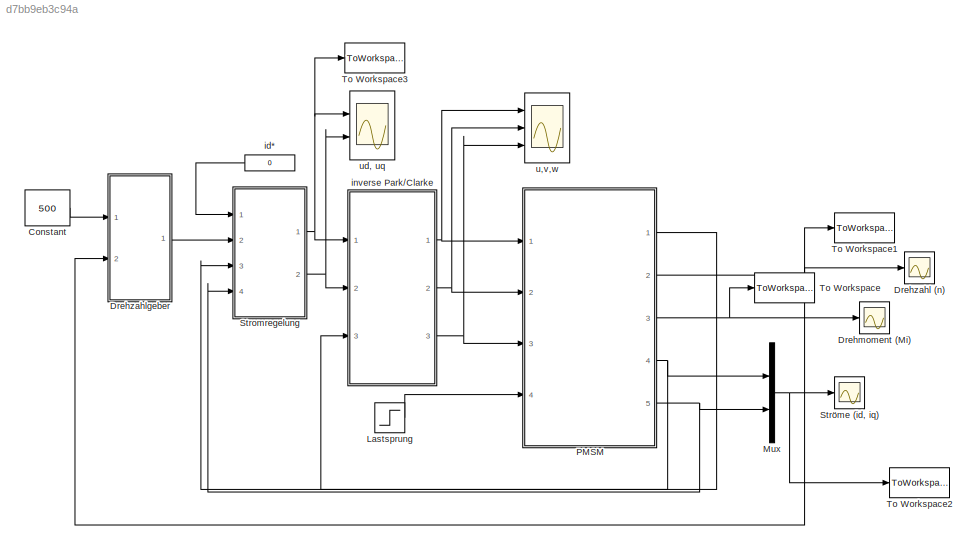
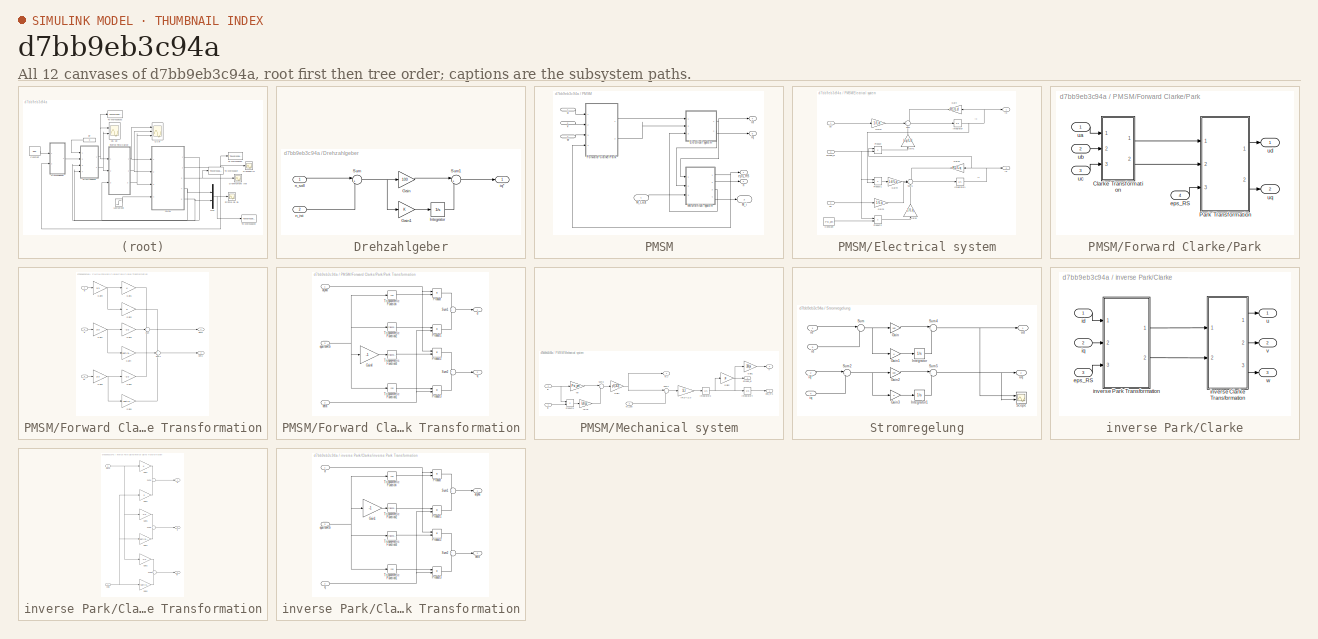
[diagram: thumbnail index - all 12 canvases of the model, root first then tree order]
MODEL slx_d7bb9eb3c94a
KIND model
BLOCK [Constant] Constant
  Value = 500
BLOCK [Scope] Drehmoment (Mi)
  Floating = off
  LimitDataPoints = off
  NumInputPorts = 1
  Ports = [1]
  SaveName = ScopeData2
  ShowLegends = off
  ZoomMode = yonly
BLOCK [Scope] Drehzahl (n)
  Floating = off
  LimitDataPoints = off
  NumInputPorts = 1
  Ports = [1]
  SaveName = ScopeData3
  ShowLegends = off
  TimeRange = 5
  YMax = 600
  YMin = 0
  ZoomMode = xonly
BLOCK [SubSystem] Drehzahlgeber
  Ports = [2, 1]
  RequestExecContextInheritance = off
BLOCK [Gain] Drehzahlgeber/Gain
  Gain = 100
  OutDataTypeStr = Inherit: Inherit via internal rule
  ParamDataTypeStr = Inherit: Inherit via internal rule
  SaturateOnIntegerOverflow = off
BLOCK [Gain] Drehzahlgeber/Gain1
  OutDataTypeStr = Inherit: Inherit via internal rule
  ParamDataTypeStr = Inherit: Inherit via internal rule
  SaturateOnIntegerOverflow = off
BLOCK [Integrator] Drehzahlgeber/Integrator
  Ports = [1, 1]
BLOCK [Sum] Drehzahlgeber/Sum
  IconShape = round
  InputSameDT = off
  Inputs = |+-
  OutDataTypeStr = Inherit: Inherit via internal rule
  Ports = [2, 1]
  SaturateOnIntegerOverflow = off
BLOCK [Sum] Drehzahlgeber/Sum1
  IconShape = round
  InputSameDT = off
  Inputs = |++
  OutDataTypeStr = Inherit: Inherit via internal rule
  Ports = [2, 1]
  SaturateOnIntegerOverflow = off
BLOCK [Outport] Drehzahlgeber/iq*
  IconDisplay = Port number
BLOCK [Inport] Drehzahlgeber/n_ist
  IconDisplay = Port number
  Port = 2
BLOCK [Inport] Drehzahlgeber/n_soll
  IconDisplay = Port number
BLOCK [Step] Lastsprung
  After = 60
  SampleTime = 0
  Time = 3
BLOCK [Mux] Mux
  DisplayOption = bar
  Inputs = 2
  Ports = [2, 1]
BLOCK [SubSystem] PMSM
  Ports = [4, 5]
  RequestExecContextInheritance = off
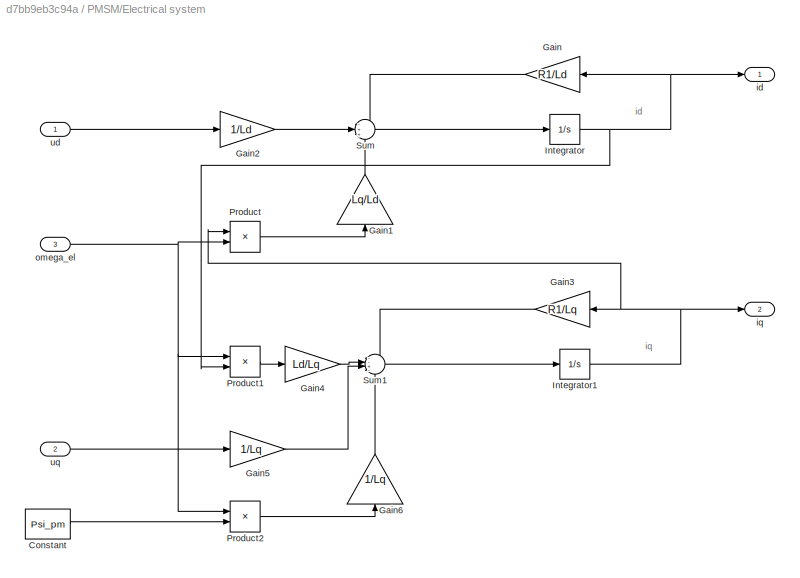
BLOCK [SubSystem] PMSM/Electrical system
  Ports = [3, 2]
  RequestExecContextInheritance = off
BLOCK [Constant] PMSM/Electrical system/Constant
  Value = Psi_pm
BLOCK [Gain] PMSM/Electrical system/Gain
  Gain = R1/Ld
  OutDataTypeStr = Inherit: Inherit via internal rule
  ParamDataTypeStr = Inherit: Inherit via internal rule
  SaturateOnIntegerOverflow = off
BLOCK [Gain] PMSM/Electrical system/Gain1
  Gain = Lq/Ld
  OutDataTypeStr = Inherit: Inherit via internal rule
  ParamDataTypeStr = Inherit: Inherit via internal rule
  SaturateOnIntegerOverflow = off
BLOCK [Gain] PMSM/Electrical system/Gain2
  Gain = 1/Ld
  OutDataTypeStr = Inherit: Inherit via internal rule
  ParamDataTypeStr = Inherit: Inherit via internal rule
  SaturateOnIntegerOverflow = off
BLOCK [Gain] PMSM/Electrical system/Gain3
  Gain = R1/Lq
  OutDataTypeStr = Inherit: Inherit via internal rule
  ParamDataTypeStr = Inherit: Inherit via internal rule
  SaturateOnIntegerOverflow = off
BLOCK [Gain] PMSM/Electrical system/Gain4
  Gain = Ld/Lq
  OutDataTypeStr = Inherit: Inherit via internal rule
  ParamDataTypeStr = Inherit: Inherit via internal rule
  SaturateOnIntegerOverflow = off
BLOCK [Gain] PMSM/Electrical system/Gain5
  Gain = 1/Lq
  OutDataTypeStr = Inherit: Inherit via internal rule
  ParamDataTypeStr = Inherit: Inherit via internal rule
  SaturateOnIntegerOverflow = off
BLOCK [Gain] PMSM/Electrical system/Gain6
  Gain = 1/Lq
  OutDataTypeStr = Inherit: Inherit via internal rule
  ParamDataTypeStr = Inherit: Inherit via internal rule
  SaturateOnIntegerOverflow = off
BLOCK [Integrator] PMSM/Electrical system/Integrator
  Ports = [1, 1]
BLOCK [Integrator] PMSM/Electrical system/Integrator1
  Ports = [1, 1]
BLOCK [Product] PMSM/Electrical system/Product
  InputSameDT = off
  OutDataTypeStr = Inherit: Inherit via internal rule
  Ports = [2, 1]
  RndMeth = Floor
  SaturateOnIntegerOverflow = off
BLOCK [Product] PMSM/Electrical system/Product1
  InputSameDT = off
  OutDataTypeStr = Inherit: Inherit via internal rule
  Ports = [2, 1]
  RndMeth = Floor
  SaturateOnIntegerOverflow = off
BLOCK [Product] PMSM/Electrical system/Product2
  InputSameDT = off
  OutDataTypeStr = Inherit: Inherit via internal rule
  Ports = [2, 1]
  RndMeth = Floor
  SaturateOnIntegerOverflow = off
BLOCK [Sum] PMSM/Electrical system/Sum
  IconShape = round
  InputSameDT = off
  Inputs = -++
  OutDataTypeStr = Inherit: Inherit via internal rule
  Ports = [3, 1]
  SaturateOnIntegerOverflow = off
BLOCK [Sum] PMSM/Electrical system/Sum1
  IconShape = round
  InputSameDT = off
  Inputs = --+-
  OutDataTypeStr = Inherit: Inherit via internal rule
  Ports = [4, 1]
  SaturateOnIntegerOverflow = off
BLOCK [Outport] PMSM/Electrical system/id
  IconDisplay = Port number
BLOCK [Outport] PMSM/Electrical system/iq
  IconDisplay = Port number
  Port = 2
BLOCK [Inport] PMSM/Electrical system/omega_el
  IconDisplay = Port number
  Port = 3
BLOCK [Inport] PMSM/Electrical system/ud
  IconDisplay = Port number
BLOCK [Inport] PMSM/Electrical system/uq
  IconDisplay = Port number
  Port = 2
BLOCK [SubSystem] PMSM/Forward Clarke//Park
  Ports = [4, 2]
  RequestExecContextInheritance = off
BLOCK [SubSystem] PMSM/Forward Clarke//Park/Clarke Transformation
  Ports = [3, 2]
  RequestExecContextInheritance = off
BLOCK [Gain] PMSM/Forward Clarke//Park/Clarke Transformation/Gain1
  OutDataTypeStr = Inherit: Inherit via internal rule
  ParamDataTypeStr = Inherit: Inherit via internal rule
  SaturateOnIntegerOverflow = off
BLOCK [Gain] PMSM/Forward Clarke//Park/Clarke Transformation/Gain2 
  Gain = 0
  OutDataTypeStr = Inherit: Inherit via internal rule
  ParamDataTypeStr = Inherit: Inherit via internal rule
  SaturateOnIntegerOverflow = off
BLOCK [Gain] PMSM/Forward Clarke//Park/Clarke Transformation/Gain3
  Gain = -1/2
  OutDataTypeStr = Inherit: Inherit via internal rule
  ParamDataTypeStr = Inherit: Inherit via internal rule
  SaturateOnIntegerOverflow = off
BLOCK [Gain] PMSM/Forward Clarke//Park/Clarke Transformation/Gain4
  Gain = sqrt(3)/2
  OutDataTypeStr = Inherit: Inherit via internal rule
  ParamDataTypeStr = Inherit: Inherit via internal rule
  SaturateOnIntegerOverflow = off
BLOCK [Gain] PMSM/Forward Clarke//Park/Clarke Transformation/Gain5
  Gain = -1/2
  OutDataTypeStr = Inherit: Inherit via internal rule
  ParamDataTypeStr = Inherit: Inherit via internal rule
  SaturateOnIntegerOverflow = off
BLOCK [Gain] PMSM/Forward Clarke//Park/Clarke Transformation/Gain6
  Gain = -sqrt(3)/2
  OutDataTypeStr = Inherit: Inherit via internal rule
  ParamDataTypeStr = Inherit: Inherit via internal rule
  SaturateOnIntegerOverflow = off
BLOCK [Gain] PMSM/Forward Clarke//Park/Clarke Transformation/Gain7
  Gain = 2/3
  OutDataTypeStr = Inherit: Inherit via internal rule
  ParamDataTypeStr = Inherit: Inherit via internal rule
  SaturateOnIntegerOverflow = off
BLOCK [Gain] PMSM/Forward Clarke//Park/Clarke Transformation/Gain8
  Gain = 2/3
  OutDataTypeStr = Inherit: Inherit via internal rule
  ParamDataTypeStr = Inherit: Inherit via internal rule
  SaturateOnIntegerOverflow = off
BLOCK [Gain] PMSM/Forward Clarke//Park/Clarke Transformation/Gain9
  Gain = 2/3
  OutDataTypeStr = Inherit: Inherit via internal rule
  ParamDataTypeStr = Inherit: Inherit via internal rule
  SaturateOnIntegerOverflow = off
BLOCK [Sum] PMSM/Forward Clarke//Park/Clarke Transformation/Sum
  IconShape = round
  InputSameDT = off
  Inputs = +++
  OutDataTypeStr = Inherit: Inherit via internal rule
  Ports = [3, 1]
  SaturateOnIntegerOverflow = off
BLOCK [Sum] PMSM/Forward Clarke//Park/Clarke Transformation/Sum1
  IconShape = round
  InputSameDT = off
  Inputs = +++
  OutDataTypeStr = Inherit: Inherit via internal rule
  Ports = [3, 1]
  SaturateOnIntegerOverflow = off
BLOCK [Outport] PMSM/Forward Clarke//Park/Clarke Transformation/alpha
  IconDisplay = Port number
BLOCK [Outport] PMSM/Forward Clarke//Park/Clarke Transformation/beta
  IconDisplay = Port number
  Port = 2
BLOCK [Inport] PMSM/Forward Clarke//Park/Clarke Transformation/iu
  IconDisplay = Port number
BLOCK [Inport] PMSM/Forward Clarke//Park/Clarke Transformation/iv
  IconDisplay = Port number
  Port = 2
BLOCK [Inport] PMSM/Forward Clarke//Park/Clarke Transformation/iw
  IconDisplay = Port number
  Port = 3
BLOCK [SubSystem] PMSM/Forward Clarke//Park/Park Transformation
  Ports = [3, 2]
  RequestExecContextInheritance = off
BLOCK [Gain] PMSM/Forward Clarke//Park/Park Transformation/Gain4
  Gain = -1
  OutDataTypeStr = Inherit: Inherit via internal rule
  ParamDataTypeStr = Inherit: Inherit via internal rule
  SaturateOnIntegerOverflow = off
BLOCK [Product] PMSM/Forward Clarke//Park/Park Transformation/Product
  InputSameDT = off
  OutDataTypeStr = Inherit: Inherit via internal rule
  Ports = [2, 1]
  RndMeth = Floor
  SaturateOnIntegerOverflow = off
BLOCK [Product] PMSM/Forward Clarke//Park/Park Transformation/Product1
  InputSameDT = off
  OutDataTypeStr = Inherit: Inherit via internal rule
  Ports = [2, 1]
  RndMeth = Floor
  SaturateOnIntegerOverflow = off
BLOCK [Product] PMSM/Forward Clarke//Park/Park Transformation/Product2
  InputSameDT = off
  OutDataTypeStr = Inherit: Inherit via internal rule
  Ports = [2, 1]
  RndMeth = Floor
  SaturateOnIntegerOverflow = off
BLOCK [Product] PMSM/Forward Clarke//Park/Park Transformation/Product3
  InputSameDT = off
  OutDataTypeStr = Inherit: Inherit via internal rule
  Ports = [2, 1]
  RndMeth = Floor
  SaturateOnIntegerOverflow = off
BLOCK [Sum] PMSM/Forward Clarke//Park/Park Transformation/Sum1
  IconShape = round
  InputSameDT = off
  OutDataTypeStr = Inherit: Inherit via internal rule
  Ports = [2, 1]
  SaturateOnIntegerOverflow = off
BLOCK [Sum] PMSM/Forward Clarke//Park/Park Transformation/Sum2
  IconShape = round
  InputSameDT = off
  OutDataTypeStr = Inherit: Inherit via internal rule
  Ports = [2, 1]
  SaturateOnIntegerOverflow = off
BLOCK [Trigonometry] PMSM/Forward Clarke//Park/Park Transformation/Trigonometric Function
  Operator = cos
  Ports = [1, 1]
BLOCK [Trigonometry] PMSM/Forward Clarke//Park/Park Transformation/Trigonometric Function1
  Operator = cos
  Ports = [1, 1]
BLOCK [Trigonometry] PMSM/Forward Clarke//Park/Park Transformation/Trigonometric Function2
  Ports = [1, 1]
BLOCK [Trigonometry] PMSM/Forward Clarke//Park/Park Transformation/Trigonometric Function3
  Ports = [1, 1]
BLOCK [Inport] PMSM/Forward Clarke//Park/Park Transformation/alpha
  IconDisplay = Port number
BLOCK [Inport] PMSM/Forward Clarke//Park/Park Transformation/beta
  IconDisplay = Port number
  Port = 2
BLOCK [Outport] PMSM/Forward Clarke//Park/Park Transformation/d
  IconDisplay = Port number
BLOCK [Inport] PMSM/Forward Clarke//Park/Park Transformation/epsilonRS
  IconDisplay = Port number
  Port = 3
BLOCK [Outport] PMSM/Forward Clarke//Park/Park Transformation/q
  IconDisplay = Port number
  Port = 2
BLOCK [Inport] PMSM/Forward Clarke//Park/eps_RS
  IconDisplay = Port number
  Port = 4
BLOCK [Inport] PMSM/Forward Clarke//Park/ua
  IconDisplay = Port number
BLOCK [Inport] PMSM/Forward Clarke//Park/ub
  IconDisplay = Port number
  Port = 2
BLOCK [Inport] PMSM/Forward Clarke//Park/uc
  IconDisplay = Port number
  Port = 3
BLOCK [Outport] PMSM/Forward Clarke//Park/ud
  IconDisplay = Port number
BLOCK [Outport] PMSM/Forward Clarke//Park/uq
  IconDisplay = Port number
  Port = 2
BLOCK [Inport] PMSM/M_Last
  IconDisplay = Port number
  Port = 4
BLOCK [Outport] PMSM/M_i
  IconDisplay = Port number
  Port = 3
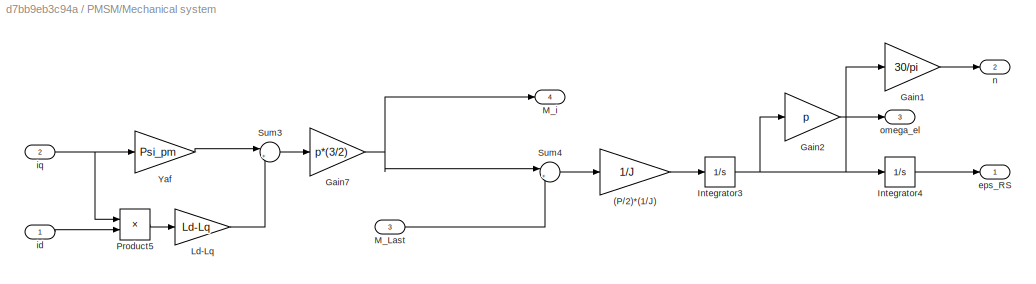
BLOCK [SubSystem] PMSM/Mechanical system
  Ports = [3, 4]
  RequestExecContextInheritance = off
BLOCK [Gain] PMSM/Mechanical system/(P//2)*(1//J)
  Gain = 1/J
  OutDataTypeStr = Inherit: Inherit via internal rule
  ParamDataTypeStr = Inherit: Inherit via internal rule
  SaturateOnIntegerOverflow = off
BLOCK [Gain] PMSM/Mechanical system/Gain1
  Gain = 30/pi
  OutDataTypeStr = Inherit: Inherit via internal rule
  ParamDataTypeStr = Inherit: Inherit via internal rule
  SaturateOnIntegerOverflow = off
BLOCK [Gain] PMSM/Mechanical system/Gain2
  Gain = p
  OutDataTypeStr = Inherit: Inherit via internal rule
  ParamDataTypeStr = Inherit: Inherit via internal rule
  SaturateOnIntegerOverflow = off
BLOCK [Gain] PMSM/Mechanical system/Gain7
  Gain = p*(3/2)
  OutDataTypeStr = Inherit: Inherit via internal rule
  ParamDataTypeStr = Inherit: Inherit via internal rule
  SaturateOnIntegerOverflow = off
BLOCK [Integrator] PMSM/Mechanical system/Integrator3
  Ports = [1, 1]
BLOCK [Integrator] PMSM/Mechanical system/Integrator4
  Ports = [1, 1]
BLOCK [Gain] PMSM/Mechanical system/Ld-Lq
  Gain = Ld-Lq
  OutDataTypeStr = Inherit: Inherit via internal rule
  ParamDataTypeStr = Inherit: Inherit via internal rule
  SaturateOnIntegerOverflow = off
BLOCK [Inport] PMSM/Mechanical system/M_Last
  IconDisplay = Port number
  Port = 3
BLOCK [Outport] PMSM/Mechanical system/M_i
  IconDisplay = Port number
  Port = 4
BLOCK [Product] PMSM/Mechanical system/Product5
  InputSameDT = off
  OutDataTypeStr = Inherit: Inherit via internal rule
  Ports = [2, 1]
  SaturateOnIntegerOverflow = off
BLOCK [Sum] PMSM/Mechanical system/Sum3
  IconShape = round
  InputSameDT = off
  Inputs = |++
  OutDataTypeStr = Inherit: Inherit via internal rule
  Ports = [2, 1]
  SaturateOnIntegerOverflow = off
BLOCK [Sum] PMSM/Mechanical system/Sum4
  IconShape = round
  InputSameDT = off
  Inputs = |+-
  OutDataTypeStr = Inherit: Inherit via internal rule
  Ports = [2, 1]
  SaturateOnIntegerOverflow = off
BLOCK [Gain] PMSM/Mechanical system/Yaf
  Gain = Psi_pm
  OutDataTypeStr = Inherit: Inherit via internal rule
  ParamDataTypeStr = Inherit: Inherit via internal rule
  SaturateOnIntegerOverflow = off
BLOCK [Outport] PMSM/Mechanical system/eps_RS
  IconDisplay = Port number
BLOCK [Inport] PMSM/Mechanical system/id
  IconDisplay = Port number
BLOCK [Inport] PMSM/Mechanical system/iq
  IconDisplay = Port number
  Port = 2
BLOCK [Outport] PMSM/Mechanical system/n
  IconDisplay = Port number
  Port = 2
BLOCK [Outport] PMSM/Mechanical system/omega_el
  IconDisplay = Port number
  Port = 3
BLOCK [Outport] PMSM/eps_RS
  IconDisplay = Port number
BLOCK [Outport] PMSM/id
  IconDisplay = Port number
  Port = 4
BLOCK [Outport] PMSM/iq
  IconDisplay = Port number
  Port = 5
BLOCK [Outport] PMSM/n
  IconDisplay = Port number
  Port = 2
BLOCK [Inport] PMSM/u 
  IconDisplay = Port number
BLOCK [Inport] PMSM/v
  IconDisplay = Port number
  Port = 2
BLOCK [Inport] PMSM/w
  IconDisplay = Port number
  Port = 3
BLOCK [SubSystem] Stromregelung
  Ports = [4, 2]
  RequestExecContextInheritance = off
BLOCK [Gain] Stromregelung/Gain
  Gain = 100
  OutDataTypeStr = Inherit: Inherit via internal rule
  ParamDataTypeStr = Inherit: Inherit via internal rule
  SaturateOnIntegerOverflow = off
BLOCK [Gain] Stromregelung/Gain1
  OutDataTypeStr = Inherit: Inherit via internal rule
  ParamDataTypeStr = Inherit: Inherit via internal rule
  SaturateOnIntegerOverflow = off
BLOCK [Gain] Stromregelung/Gain2
  Gain = 100
  OutDataTypeStr = Inherit: Inherit via internal rule
  ParamDataTypeStr = Inherit: Inherit via internal rule
  SaturateOnIntegerOverflow = off
BLOCK [Gain] Stromregelung/Gain3
  OutDataTypeStr = Inherit: Inherit via internal rule
  ParamDataTypeStr = Inherit: Inherit via internal rule
  SaturateOnIntegerOverflow = off
BLOCK [Integrator] Stromregelung/Integrator
  Ports = [1, 1]
BLOCK [Integrator] Stromregelung/Integrator1
  Ports = [1, 1]
BLOCK [Scope] Stromregelung/Scope
  DataFormat = StructureWithTime
  Floating = off
  LimitDataPoints = off
  NumInputPorts = 2
  Ports = [2]
  SampleTime = 0
  SaveName = ScopeData1
  ShowLegends = off
  TimeRange = 5
  YMax = 0~5
  YMin = -1.3~-5
BLOCK [Sum] Stromregelung/Sum
  IconShape = round
  InputSameDT = off
  Inputs = |+-
  OutDataTypeStr = Inherit: Inherit via internal rule
  Ports = [2, 1]
  SaturateOnIntegerOverflow = off
BLOCK [Sum] Stromregelung/Sum2
  IconShape = round
  InputSameDT = off
  Inputs = |+-
  OutDataTypeStr = Inherit: Inherit via internal rule
  Ports = [2, 1]
  SaturateOnIntegerOverflow = off
BLOCK [Sum] Stromregelung/Sum4
  IconShape = round
  InputSameDT = off
  Inputs = |++
  OutDataTypeStr = Inherit: Inherit via internal rule
  Ports = [2, 1]
  SaturateOnIntegerOverflow = off
BLOCK [Sum] Stromregelung/Sum5
  IconShape = round
  InputSameDT = off
  Inputs = |++
  OutDataTypeStr = Inherit: Inherit via internal rule
  Ports = [2, 1]
  SaturateOnIntegerOverflow = off
BLOCK [Inport] Stromregelung/id
  IconDisplay = Port number
  Port = 3
BLOCK [Inport] Stromregelung/id*
  IconDisplay = Port number
BLOCK [Inport] Stromregelung/iq
  IconDisplay = Port number
  Port = 4
BLOCK [Inport] Stromregelung/iq*
  IconDisplay = Port number
  Port = 2
BLOCK [Outport] Stromregelung/ud
  IconDisplay = Port number
BLOCK [Outport] Stromregelung/uq
  IconDisplay = Port number
  Port = 2
BLOCK [Scope] Ströme (id, iq)
  Floating = off
  LimitDataPoints = off
  NumInputPorts = 1
  Ports = [1]
  SaveName = ScopeData4
  ShowLegends = off
  ZoomMode = xonly
BLOCK [ToWorkspace] To Workspace
  FixptAsFi = on
  MaxDataPoints = inf
  Ports = [1]
  SampleTime = -1
  Save2DSignal = 3-D array (concatenate along third dimension)
  SaveFormat = Timeseries
  VariableName = Mi
BLOCK [ToWorkspace] To Workspace1
  FixptAsFi = on
  MaxDataPoints = inf
  Ports = [1]
  SampleTime = -1
  Save2DSignal = 3-D array (concatenate along third dimension)
  SaveFormat = Timeseries
  VariableName = n
BLOCK [ToWorkspace] To Workspace2
  FixptAsFi = on
  MaxDataPoints = inf
  Ports = [1]
  SampleTime = -1
  Save2DSignal = 3-D array (concatenate along third dimension)
  SaveFormat = Timeseries
  VariableName = idiq
BLOCK [ToWorkspace] To Workspace3
  FixptAsFi = on
  MaxDataPoints = inf
  Ports = [1]
  SampleTime = -1
  Save2DSignal = 3-D array (concatenate along third dimension)
  SaveFormat = Timeseries
  VariableName = id
BLOCK [Constant] id*
  Value = 0
BLOCK [SubSystem] inverse Park//Clarke
  Ports = [3, 3]
  RequestExecContextInheritance = off
BLOCK [Inport] inverse Park//Clarke/eps_RS
  IconDisplay = Port number
  Port = 3
BLOCK [Inport] inverse Park//Clarke/id
  IconDisplay = Port number
BLOCK [SubSystem] inverse Park//Clarke/inverse Clarke Transformation
  Ports = [2, 3]
  RequestExecContextInheritance = off
BLOCK [Gain] inverse Park//Clarke/inverse Clarke Transformation/Gain1
  OutDataTypeStr = Inherit: Inherit via internal rule
  ParamDataTypeStr = Inherit: Inherit via internal rule
  SaturateOnIntegerOverflow = off
BLOCK [Gain] inverse Park//Clarke/inverse Clarke Transformation/Gain2
  Gain = -1/2
  OutDataTypeStr = Inherit: Inherit via internal rule
  ParamDataTypeStr = Inherit: Inherit via internal rule
  SaturateOnIntegerOverflow = off
BLOCK [Gain] inverse Park//Clarke/inverse Clarke Transformation/Gain2 
  Gain = 0
  OutDataTypeStr = Inherit: Inherit via internal rule
  ParamDataTypeStr = Inherit: Inherit via internal rule
  SaturateOnIntegerOverflow = off
BLOCK [Gain] inverse Park//Clarke/inverse Clarke Transformation/Gain4
  Gain = sqrt(3)/2
  OutDataTypeStr = Inherit: Inherit via internal rule
  ParamDataTypeStr = Inherit: Inherit via internal rule
  SaturateOnIntegerOverflow = off
BLOCK [Gain] inverse Park//Clarke/inverse Clarke Transformation/Gain5
  Gain = -1/2
  OutDataTypeStr = Inherit: Inherit via internal rule
  ParamDataTypeStr = Inherit: Inherit via internal rule
  SaturateOnIntegerOverflow = off
BLOCK [Gain] inverse Park//Clarke/inverse Clarke Transformation/Gain6
  Gain = -sqrt(3)/2
  OutDataTypeStr = Inherit: Inherit via internal rule
  ParamDataTypeStr = Inherit: Inherit via internal rule
  SaturateOnIntegerOverflow = off
BLOCK [Sum] inverse Park//Clarke/inverse Clarke Transformation/Sum1
  IconShape = round
  InputSameDT = off
  OutDataTypeStr = Inherit: Inherit via internal rule
  Ports = [2, 1]
  SaturateOnIntegerOverflow = off
BLOCK [Sum] inverse Park//Clarke/inverse Clarke Transformation/Sum2
  IconShape = round
  InputSameDT = off
  OutDataTypeStr = Inherit: Inherit via internal rule
  Ports = [2, 1]
  SaturateOnIntegerOverflow = off
BLOCK [Sum] inverse Park//Clarke/inverse Clarke Transformation/Sum3
  IconShape = round
  InputSameDT = off
  OutDataTypeStr = Inherit: Inherit via internal rule
  Ports = [2, 1]
  SaturateOnIntegerOverflow = off
BLOCK [Inport] inverse Park//Clarke/inverse Clarke Transformation/alpha
  IconDisplay = Port number
BLOCK [Inport] inverse Park//Clarke/inverse Clarke Transformation/beta
  IconDisplay = Port number
  Port = 2
BLOCK [Outport] inverse Park//Clarke/inverse Clarke Transformation/iu
  IconDisplay = Port number
BLOCK [Outport] inverse Park//Clarke/inverse Clarke Transformation/iv
  IconDisplay = Port number
  Port = 2
BLOCK [Outport] inverse Park//Clarke/inverse Clarke Transformation/iw
  IconDisplay = Port number
  Port = 3
BLOCK [SubSystem] inverse Park//Clarke/inverse Park Transformation
  Ports = [3, 2]
  RequestExecContextInheritance = off
BLOCK [Gain] inverse Park//Clarke/inverse Park Transformation/Gain1
  Gain = -1
  OutDataTypeStr = Inherit: Inherit via internal rule
  ParamDataTypeStr = Inherit: Inherit via internal rule
  SaturateOnIntegerOverflow = off
BLOCK [Product] inverse Park//Clarke/inverse Park Transformation/Product
  InputSameDT = off
  OutDataTypeStr = Inherit: Inherit via internal rule
  Ports = [2, 1]
  RndMeth = Floor
  SaturateOnIntegerOverflow = off
BLOCK [Product] inverse Park//Clarke/inverse Park Transformation/Product1
  InputSameDT = off
  OutDataTypeStr = Inherit: Inherit via internal rule
  Ports = [2, 1]
  RndMeth = Floor
  SaturateOnIntegerOverflow = off
BLOCK [Product] inverse Park//Clarke/inverse Park Transformation/Product2
  InputSameDT = off
  OutDataTypeStr = Inherit: Inherit via internal rule
  Ports = [2, 1]
  RndMeth = Floor
  SaturateOnIntegerOverflow = off
BLOCK [Product] inverse Park//Clarke/inverse Park Transformation/Product3
  InputSameDT = off
  OutDataTypeStr = Inherit: Inherit via internal rule
  Ports = [2, 1]
  RndMeth = Floor
  SaturateOnIntegerOverflow = off
BLOCK [Sum] inverse Park//Clarke/inverse Park Transformation/Sum1
  IconShape = round
  InputSameDT = off
  OutDataTypeStr = Inherit: Inherit via internal rule
  Ports = [2, 1]
  SaturateOnIntegerOverflow = off
BLOCK [Sum] inverse Park//Clarke/inverse Park Transformation/Sum2
  IconShape = round
  InputSameDT = off
  OutDataTypeStr = Inherit: Inherit via internal rule
  Ports = [2, 1]
  SaturateOnIntegerOverflow = off
BLOCK [Trigonometry] inverse Park//Clarke/inverse Park Transformation/Trigonometric Function
  Operator = cos
  Ports = [1, 1]
BLOCK [Trigonometry] inverse Park//Clarke/inverse Park Transformation/Trigonometric Function1
  Operator = cos
  Ports = [1, 1]
BLOCK [Trigonometry] inverse Park//Clarke/inverse Park Transformation/Trigonometric Function2
  Ports = [1, 1]
BLOCK [Trigonometry] inverse Park//Clarke/inverse Park Transformation/Trigonometric Function3
  Ports = [1, 1]
BLOCK [Outport] inverse Park//Clarke/inverse Park Transformation/alpha
  IconDisplay = Port number
BLOCK [Outport] inverse Park//Clarke/inverse Park Transformation/beta
  IconDisplay = Port number
  Port = 2
BLOCK [Inport] inverse Park//Clarke/inverse Park Transformation/d
  IconDisplay = Port number
BLOCK [Inport] inverse Park//Clarke/inverse Park Transformation/epsilonRS
  IconDisplay = Port number
  Port = 3
BLOCK [Inport] inverse Park//Clarke/inverse Park Transformation/q
  IconDisplay = Port number
  Port = 2
BLOCK [Inport] inverse Park//Clarke/iq
  IconDisplay = Port number
  Port = 2
BLOCK [Outport] inverse Park//Clarke/u
  IconDisplay = Port number
BLOCK [Outport] inverse Park//Clarke/v
  IconDisplay = Port number
  Port = 2
BLOCK [Outport] inverse Park//Clarke/w
  IconDisplay = Port number
  Port = 3
BLOCK [Scope] u,v,w
  Floating = off
  LimitDataPoints = off
  NumInputPorts = 3
  Ports = [3]
  SaveName = ScopeData5
  ShowLegends = off
  YMax = 900~100~5
  YMin = 0~-100~-5
  ZoomMode = xonly
BLOCK [Scope] ud, uq
  Floating = off
  LimitDataPoints = off
  NumInputPorts = 2
  Ports = [2]
  ShowLegends = off
  YMax = 900~100
  YMin = 0~-100
  ZoomMode = yonly
ANNOTATION PMSM/Electrical system: id
ANNOTATION PMSM/Electrical system: iq
LINE Constant:1 -> Drehzahlgeber:1
LINE Drehzahlgeber/Gain1:1 -> Drehzahlgeber/Integrator:1
LINE Drehzahlgeber/Gain:1 -> Drehzahlgeber/Sum1:1
LINE Drehzahlgeber/Integrator:1 -> Drehzahlgeber/Sum1:2
LINE Drehzahlgeber/Sum1:1 -> Drehzahlgeber/iq*:1
NET Drehzahlgeber/Sum:1 -> Drehzahlgeber/Gain1:1, Drehzahlgeber/Gain:1
LINE Drehzahlgeber/n_ist:1 -> Drehzahlgeber/Sum:2
LINE Drehzahlgeber/n_soll:1 -> Drehzahlgeber/Sum:1
LINE Drehzahlgeber:1 -> Stromregelung:2
LINE Lastsprung:1 -> PMSM:4
NET Mux:1 -> Ströme (id, iq):1, To Workspace2:1
LINE PMSM/Electrical system/Constant:1 -> PMSM/Electrical system/Product2:2
LINE PMSM/Electrical system/Gain1:1 -> PMSM/Electrical system/Sum:3
LINE PMSM/Electrical system/Gain2:1 -> PMSM/Electrical system/Sum:2
LINE PMSM/Electrical system/Gain3:1 -> PMSM/Electrical system/Sum1:1
LINE PMSM/Electrical system/Gain4:1 -> PMSM/Electrical system/Sum1:2
LINE PMSM/Electrical system/Gain5:1 -> PMSM/Electrical system/Sum1:3
LINE PMSM/Electrical system/Gain6:1 -> PMSM/Electrical system/Sum1:4
LINE PMSM/Electrical system/Gain:1 -> PMSM/Electrical system/Sum:1
NET PMSM/Electrical system/Integrator1:1 -> PMSM/Electrical system/Gain3:1, PMSM/Electrical system/Product:1, PMSM/Electrical system/iq:1
NET PMSM/Electrical system/Integrator:1 -> PMSM/Electrical system/Gain:1, PMSM/Electrical system/Product1:2, PMSM/Electrical system/id:1
LINE PMSM/Electrical system/Product1:1 -> PMSM/Electrical system/Gain4:1
LINE PMSM/Electrical system/Product2:1 -> PMSM/Electrical system/Gain6:1
LINE PMSM/Electrical system/Product:1 -> PMSM/Electrical system/Gain1:1
LINE PMSM/Electrical system/Sum1:1 -> PMSM/Electrical system/Integrator1:1
LINE PMSM/Electrical system/Sum:1 -> PMSM/Electrical system/Integrator:1
NET PMSM/Electrical system/omega_el:1 -> PMSM/Electrical system/Product1:1, PMSM/Electrical system/Product2:1, PMSM/Electrical system/Product:2
LINE PMSM/Electrical system/ud:1 -> PMSM/Electrical system/Gain2:1
LINE PMSM/Electrical system/uq:1 -> PMSM/Electrical system/Gain5:1
NET PMSM/Electrical system:1 -> PMSM/Mechanical system:1, PMSM/id:1
NET PMSM/Electrical system:2 -> PMSM/Mechanical system:2, PMSM/iq:1
LINE PMSM/Forward Clarke//Park/Clarke Transformation/Gain1:1 -> PMSM/Forward Clarke//Park/Clarke Transformation/Sum:1
LINE PMSM/Forward Clarke//Park/Clarke Transformation/Gain2 :1 -> PMSM/Forward Clarke//Park/Clarke Transformation/Sum1:1
LINE PMSM/Forward Clarke//Park/Clarke Transformation/Gain3:1 -> PMSM/Forward Clarke//Park/Clarke Transformation/Sum:2
LINE PMSM/Forward Clarke//Park/Clarke Transformation/Gain4:1 -> PMSM/Forward Clarke//Park/Clarke Transformation/Sum1:2
LINE PMSM/Forward Clarke//Park/Clarke Transformation/Gain5:1 -> PMSM/Forward Clarke//Park/Clarke Transformation/Sum:3
LINE PMSM/Forward Clarke//Park/Clarke Transformation/Gain6:1 -> PMSM/Forward Clarke//Park/Clarke Transformation/Sum1:3
NET PMSM/Forward Clarke//Park/Clarke Transformation/Gain7:1 -> PMSM/Forward Clarke//Park/Clarke Transformation/Gain3:1, PMSM/Forward Clarke//Park/Clarke Transformation/Gain4:1
NET PMSM/Forward Clarke//Park/Clarke Transformation/Gain8:1 -> PMSM/Forward Clarke//Park/Clarke Transformation/Gain5:1, PMSM/Forward Clarke//Park/Clarke Transformation/Gain6:1
NET PMSM/Forward Clarke//Park/Clarke Transformation/Gain9:1 -> PMSM/Forward Clarke//Park/Clarke Transformation/Gain1:1, PMSM/Forward Clarke//Park/Clarke Transformation/Gain2 :1
LINE PMSM/Forward Clarke//Park/Clarke Transformation/Sum1:1 -> PMSM/Forward Clarke//Park/Clarke Transformation/beta:1
LINE PMSM/Forward Clarke//Park/Clarke Transformation/Sum:1 -> PMSM/Forward Clarke//Park/Clarke Transformation/alpha:1
LINE PMSM/Forward Clarke//Park/Clarke Transformation/iu:1 -> PMSM/Forward Clarke//Park/Clarke Transformation/Gain9:1
LINE PMSM/Forward Clarke//Park/Clarke Transformation/iv:1 -> PMSM/Forward Clarke//Park/Clarke Transformation/Gain7:1
LINE PMSM/Forward Clarke//Park/Clarke Transformation/iw:1 -> PMSM/Forward Clarke//Park/Clarke Transformation/Gain8:1
LINE PMSM/Forward Clarke//Park/Clarke Transformation:1 -> PMSM/Forward Clarke//Park/Park Transformation:1
LINE PMSM/Forward Clarke//Park/Clarke Transformation:2 -> PMSM/Forward Clarke//Park/Park Transformation:2
LINE PMSM/Forward Clarke//Park/Park Transformation/Gain4:1 -> PMSM/Forward Clarke//Park/Park Transformation/Trigonometric Function3:1
LINE PMSM/Forward Clarke//Park/Park Transformation/Product1:1 -> PMSM/Forward Clarke//Park/Park Transformation/Sum1:2
LINE PMSM/Forward Clarke//Park/Park Transformation/Product2:1 -> PMSM/Forward Clarke//Park/Park Transformation/Sum2:1
LINE PMSM/Forward Clarke//Park/Park Transformation/Product3:1 -> PMSM/Forward Clarke//Park/Park Transformation/Sum2:2
LINE PMSM/Forward Clarke//Park/Park Transformation/Product:1 -> PMSM/Forward Clarke//Park/Park Transformation/Sum1:1
LINE PMSM/Forward Clarke//Park/Park Transformation/Sum1:1 -> PMSM/Forward Clarke//Park/Park Transformation/d:1
LINE PMSM/Forward Clarke//Park/Park Transformation/Sum2:1 -> PMSM/Forward Clarke//Park/Park Transformation/q:1
LINE PMSM/Forward Clarke//Park/Park Transformation/Trigonometric Function1:1 -> PMSM/Forward Clarke//Park/Park Transformation/Product3:1
LINE PMSM/Forward Clarke//Park/Park Transformation/Trigonometric Function2:1 -> PMSM/Forward Clarke//Park/Park Transformation/Product1:1
LINE PMSM/Forward Clarke//Park/Park Transformation/Trigonometric Function3:1 -> PMSM/Forward Clarke//Park/Park Transformation/Product2:2
LINE PMSM/Forward Clarke//Park/Park Transformation/Trigonometric Function:1 -> PMSM/Forward Clarke//Park/Park Transformation/Product:2
NET PMSM/Forward Clarke//Park/Park Transformation/alpha:1 -> PMSM/Forward Clarke//Park/Park Transformation/Product2:1, PMSM/Forward Clarke//Park/Park Transformation/Product:1
NET PMSM/Forward Clarke//Park/Park Transformation/beta:1 -> PMSM/Forward Clarke//Park/Park Transformation/Product1:2, PMSM/Forward Clarke//Park/Park Transformation/Product3:2
NET PMSM/Forward Clarke//Park/Park Transformation/epsilonRS:1 -> PMSM/Forward Clarke//Park/Park Transformation/Gain4:1, PMSM/Forward Clarke//Park/Park Transformation/Trigonometric Function1:1, PMSM/Forward Clarke//Park/Park Transformation/Trigonometric Function2:1, PMSM/Forward Clarke//Park/Park Transformation/Trigonometric Function:1
LINE PMSM/Forward Clarke//Park/Park Transformation:1 -> PMSM/Forward Clarke//Park/ud:1
LINE PMSM/Forward Clarke//Park/Park Transformation:2 -> PMSM/Forward Clarke//Park/uq:1
LINE PMSM/Forward Clarke//Park/eps_RS:1 -> PMSM/Forward Clarke//Park/Park Transformation:3
LINE PMSM/Forward Clarke//Park/ua:1 -> PMSM/Forward Clarke//Park/Clarke Transformation:1
LINE PMSM/Forward Clarke//Park/ub:1 -> PMSM/Forward Clarke//Park/Clarke Transformation:2
LINE PMSM/Forward Clarke//Park/uc:1 -> PMSM/Forward Clarke//Park/Clarke Transformation:3
LINE PMSM/Forward Clarke//Park:1 -> PMSM/Electrical system:1
LINE PMSM/Forward Clarke//Park:2 -> PMSM/Electrical system:2
LINE PMSM/M_Last:1 -> PMSM/Mechanical system:3
LINE PMSM/Mechanical system/(P//2)*(1//J):1 -> PMSM/Mechanical system/Integrator3:1
LINE PMSM/Mechanical system/Gain1:1 -> PMSM/Mechanical system/n:1
LINE PMSM/Mechanical system/Gain2:1 -> PMSM/Mechanical system/omega_el:1
NET PMSM/Mechanical system/Gain7:1 -> PMSM/Mechanical system/M_i:1, PMSM/Mechanical system/Sum4:1
NET PMSM/Mechanical system/Integrator3:1 -> PMSM/Mechanical system/Gain1:1, PMSM/Mechanical system/Gain2:1, PMSM/Mechanical system/Integrator4:1
LINE PMSM/Mechanical system/Integrator4:1 -> PMSM/Mechanical system/eps_RS:1
LINE PMSM/Mechanical system/Ld-Lq:1 -> PMSM/Mechanical system/Sum3:2
LINE PMSM/Mechanical system/M_Last:1 -> PMSM/Mechanical system/Sum4:2
LINE PMSM/Mechanical system/Product5:1 -> PMSM/Mechanical system/Ld-Lq:1
LINE PMSM/Mechanical system/Sum3:1 -> PMSM/Mechanical system/Gain7:1
LINE PMSM/Mechanical system/Sum4:1 -> PMSM/Mechanical system/(P//2)*(1//J):1
LINE PMSM/Mechanical system/Yaf:1 -> PMSM/Mechanical system/Sum3:1
LINE PMSM/Mechanical system/id:1 -> PMSM/Mechanical system/Product5:2
NET PMSM/Mechanical system/iq:1 -> PMSM/Mechanical system/Product5:1, PMSM/Mechanical system/Yaf:1
NET PMSM/Mechanical system:1 -> PMSM/Forward Clarke//Park:4, PMSM/eps_RS:1
LINE PMSM/Mechanical system:2 -> PMSM/n:1
LINE PMSM/Mechanical system:3 -> PMSM/Electrical system:3
LINE PMSM/Mechanical system:4 -> PMSM/M_i:1
LINE PMSM/u :1 -> PMSM/Forward Clarke//Park:1
LINE PMSM/v:1 -> PMSM/Forward Clarke//Park:2
LINE PMSM/w:1 -> PMSM/Forward Clarke//Park:3
LINE PMSM:1 -> inverse Park//Clarke:3
NET PMSM:2 -> Drehzahl (n):1, Drehzahlgeber:2, To Workspace1:1
NET PMSM:3 -> Drehmoment (Mi):1, To Workspace:1
NET PMSM:4 -> Mux:1, Stromregelung:3
NET PMSM:5 -> Mux:2, Stromregelung:4
LINE Stromregelung/Gain1:1 -> Stromregelung/Integrator:1
LINE Stromregelung/Gain2:1 -> Stromregelung/Sum5:1
LINE Stromregelung/Gain3:1 -> Stromregelung/Integrator1:1
LINE Stromregelung/Gain:1 -> Stromregelung/Sum4:1
LINE Stromregelung/Integrator1:1 -> Stromregelung/Sum5:2
LINE Stromregelung/Integrator:1 -> Stromregelung/Sum4:2
NET Stromregelung/Sum2:1 -> Stromregelung/Gain2:1, Stromregelung/Gain3:1
NET Stromregelung/Sum4:1 -> Stromregelung/Scope:1, Stromregelung/ud:1
NET Stromregelung/Sum5:1 -> Stromregelung/Scope:2, Stromregelung/uq:1
NET Stromregelung/Sum:1 -> Stromregelung/Gain1:1, Stromregelung/Gain:1
LINE Stromregelung/id*:1 -> Stromregelung/Sum:1
LINE Stromregelung/id:1 -> Stromregelung/Sum:2
LINE Stromregelung/iq*:1 -> Stromregelung/Sum2:1
LINE Stromregelung/iq:1 -> Stromregelung/Sum2:2
NET Stromregelung:1 -> To Workspace3:1, inverse Park//Clarke:1, ud, uq:1
NET Stromregelung:2 -> inverse Park//Clarke:2, ud, uq:2
LINE id*:1 -> Stromregelung:1
LINE inverse Park//Clarke/eps_RS:1 -> inverse Park//Clarke/inverse Park Transformation:3
LINE inverse Park//Clarke/id:1 -> inverse Park//Clarke/inverse Park Transformation:1
LINE inverse Park//Clarke/inverse Clarke Transformation/Gain1:1 -> inverse Park//Clarke/inverse Clarke Transformation/Sum1:1
LINE inverse Park//Clarke/inverse Clarke Transformation/Gain2 :1 -> inverse Park//Clarke/inverse Clarke Transformation/Sum1:2
LINE inverse Park//Clarke/inverse Clarke Transformation/Gain2:1 -> inverse Park//Clarke/inverse Clarke Transformation/Sum3:1
LINE inverse Park//Clarke/inverse Clarke Transformation/Gain4:1 -> inverse Park//Clarke/inverse Clarke Transformation/Sum2:2
LINE inverse Park//Clarke/inverse Clarke Transformation/Gain5:1 -> inverse Park//Clarke/inverse Clarke Transformation/Sum2:1
LINE inverse Park//Clarke/inverse Clarke Transformation/Gain6:1 -> inverse Park//Clarke/inverse Clarke Transformation/Sum3:2
LINE inverse Park//Clarke/inverse Clarke Transformation/Sum1:1 -> inverse Park//Clarke/inverse Clarke Transformation/iu:1
LINE inverse Park//Clarke/inverse Clarke Transformation/Sum2:1 -> inverse Park//Clarke/inverse Clarke Transformation/iv:1
LINE inverse Park//Clarke/inverse Clarke Transformation/Sum3:1 -> inverse Park//Clarke/inverse Clarke Transformation/iw:1
NET inverse Park//Clarke/inverse Clarke Transformation/alpha:1 -> inverse Park//Clarke/inverse Clarke Transformation/Gain1:1, inverse Park//Clarke/inverse Clarke Transformation/Gain2:1, inverse Park//Clarke/inverse Clarke Transformation/Gain5:1
NET inverse Park//Clarke/inverse Clarke Transformation/beta:1 -> inverse Park//Clarke/inverse Clarke Transformation/Gain2 :1, inverse Park//Clarke/inverse Clarke Transformation/Gain4:1, inverse Park//Clarke/inverse Clarke Transformation/Gain6:1
LINE inverse Park//Clarke/inverse Clarke Transformation:1 -> inverse Park//Clarke/u:1
LINE inverse Park//Clarke/inverse Clarke Transformation:2 -> inverse Park//Clarke/v:1
LINE inverse Park//Clarke/inverse Clarke Transformation:3 -> inverse Park//Clarke/w:1
LINE inverse Park//Clarke/inverse Park Transformation/Gain1:1 -> inverse Park//Clarke/inverse Park Transformation/Trigonometric Function2:1
LINE inverse Park//Clarke/inverse Park Transformation/Product1:1 -> inverse Park//Clarke/inverse Park Transformation/Sum1:2
LINE inverse Park//Clarke/inverse Park Transformation/Product2:1 -> inverse Park//Clarke/inverse Park Transformation/Sum2:1
LINE inverse Park//Clarke/inverse Park Transformation/Product3:1 -> inverse Park//Clarke/inverse Park Transformation/Sum2:2
LINE inverse Park//Clarke/inverse Park Transformation/Product:1 -> inverse Park//Clarke/inverse Park Transformation/Sum1:1
LINE inverse Park//Clarke/inverse Park Transformation/Sum1:1 -> inverse Park//Clarke/inverse Park Transformation/alpha:1
LINE inverse Park//Clarke/inverse Park Transformation/Sum2:1 -> inverse Park//Clarke/inverse Park Transformation/beta:1
LINE inverse Park//Clarke/inverse Park Transformation/Trigonometric Function1:1 -> inverse Park//Clarke/inverse Park Transformation/Product3:1
LINE inverse Park//Clarke/inverse Park Transformation/Trigonometric Function2:1 -> inverse Park//Clarke/inverse Park Transformation/Product1:1
LINE inverse Park//Clarke/inverse Park Transformation/Trigonometric Function3:1 -> inverse Park//Clarke/inverse Park Transformation/Product2:2
LINE inverse Park//Clarke/inverse Park Transformation/Trigonometric Function:1 -> inverse Park//Clarke/inverse Park Transformation/Product:2
NET inverse Park//Clarke/inverse Park Transformation/d:1 -> inverse Park//Clarke/inverse Park Transformation/Product2:1, inverse Park//Clarke/inverse Park Transformation/Product:1
NET inverse Park//Clarke/inverse Park Transformation/epsilonRS:1 -> inverse Park//Clarke/inverse Park Transformation/Gain1:1, inverse Park//Clarke/inverse Park Transformation/Trigonometric Function1:1, inverse Park//Clarke/inverse Park Transformation/Trigonometric Function3:1, inverse Park//Clarke/inverse Park Transformation/Trigonometric Function:1
NET inverse Park//Clarke/inverse Park Transformation/q:1 -> inverse Park//Clarke/inverse Park Transformation/Product1:2, inverse Park//Clarke/inverse Park Transformation/Product3:2
LINE inverse Park//Clarke/inverse Park Transformation:1 -> inverse Park//Clarke/inverse Clarke Transformation:1
LINE inverse Park//Clarke/inverse Park Transformation:2 -> inverse Park//Clarke/inverse Clarke Transformation:2
LINE inverse Park//Clarke/iq:1 -> inverse Park//Clarke/inverse Park Transformation:2
NET inverse Park//Clarke:1 -> PMSM:1, u,v,w:1
NET inverse Park//Clarke:2 -> PMSM:2, u,v,w:2
NET inverse Park//Clarke:3 -> PMSM:3, u,v,w:3
note: NET lines group one-source signal fan-out (src -> all destinations, sorted); 1:1 wires keep LINE
